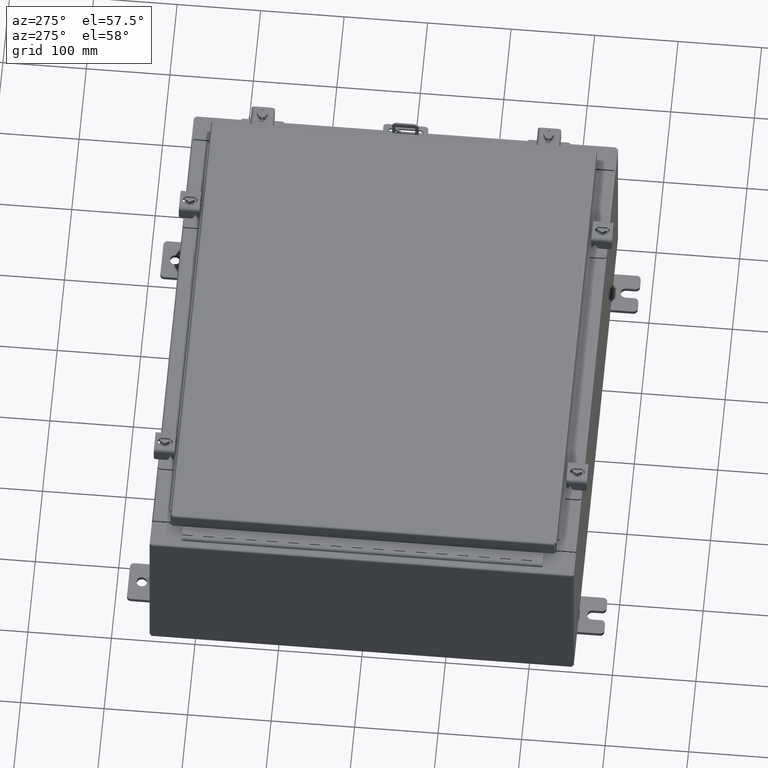
[diagram: clean part render]
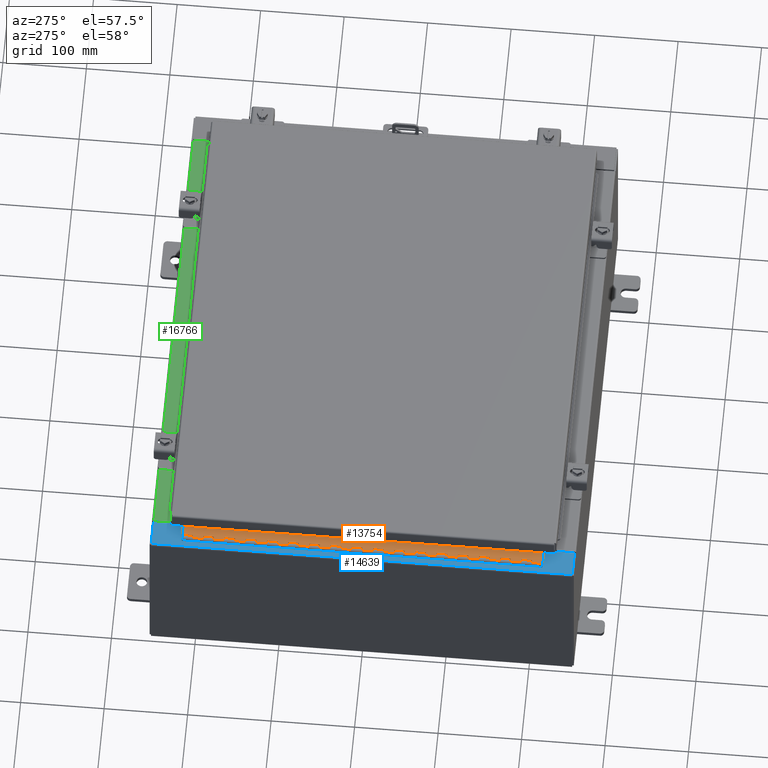
[diagram: same view with three faces highlighted in distinct colors, each labeled with its STEP entity id]
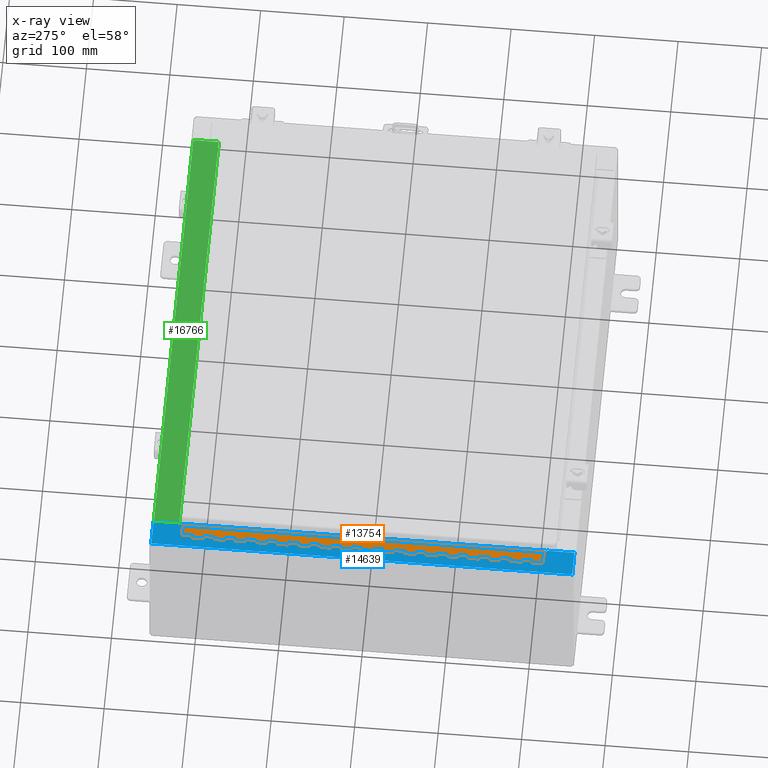
[diagram: x-ray of the same camera — body ghosted, the three highlighted faces saturated]
A machine part, auxiliary view with three faces highlighted in distinct colors.
The next image is the same camera in x-ray (body ghosted, the three faces saturated) — at least one of them is partly hidden behind the body in this view.
Their STEP definitions:

[orange] entity #13754 — the highlighted planar face has unit normal (-0, -0, 1).
#150 = CARTESIAN_POINT ( 'NONE',  ( -0.6869999999999982800, 0.5504999999999997700, -11.50000000000000000 ) ) ;
#158 = DIRECTION ( 'NONE',  ( 0.0000000000000000000, 0.0000000000000000000, 1.000000000000000000 ) ) ;
#272 = VERTEX_POINT ( 'NONE', #16913 ) ;
#316 = VECTOR ( 'NONE', #18030, 39.37007874015748100 ) ;
#347 = VECTOR ( 'NONE', #1883, 39.37007874015748100 ) ;
#364 = CARTESIAN_POINT ( 'NONE',  ( -0.6870000000000022800, -0.6245000000000003900, 0.0000000000000000000 ) ) ;
#389 = CARTESIAN_POINT ( 'NONE',  ( -0.6869999999999982800, 0.5504999999999997700, -2.500000000000000000 ) ) ;
#392 = CARTESIAN_POINT ( 'NONE',  ( -0.6869999999999973900, 0.8004999999999995500, -10.00000000000000000 ) ) ;
#564 = LINE ( 'NONE', #23940, #24026 ) ;
#725 = CARTESIAN_POINT ( 'NONE',  ( -0.6869999999999978300, 0.6754999999999996600, -3.500000000000000000 ) ) ;
#797 = ORIENTED_EDGE ( 'NONE', *, *, #13504, .F. ) ;
#824 = PLANE ( 'NONE',  #3108 ) ;
#835 = EDGE_CURVE ( 'NONE', #9790, #6405, #29325, .T. ) ;
#948 = DIRECTION ( 'NONE',  ( -3.389037039080723100E-015, -1.000000000000000000, 0.0000000000000000000 ) ) ;
#973 = LINE ( 'NONE', #16777, #18375 ) ;
#1019 = CARTESIAN_POINT ( 'NONE',  ( -0.6869999999999998300, 0.07549999999999991400, 0.0000000000000000000 ) ) ;
#1032 = VERTEX_POINT ( 'NONE', #15444 ) ;
#1087 = ORIENTED_EDGE ( 'NONE', *, *, #16019, .T. ) ;
#1096 = ORIENTED_EDGE ( 'NONE', *, *, #2405, .F. ) ;
#1105 = CARTESIAN_POINT ( 'NONE',  ( -0.6869999999999978300, 0.6754999999999996600, -2.999999999999999600 ) ) ;
#1111 = CARTESIAN_POINT ( 'NONE',  ( -0.6869999999999978300, 0.6754999999999996600, -4.000000000000000000 ) ) ;
#1155 = EDGE_CURVE ( 'NONE', #28097, #10122, #16800, .T. ) ;
#1238 = CARTESIAN_POINT ( 'NONE',  ( -0.6869999999999982800, 0.5504999999999997700, -14.00000000000000000 ) ) ;
#1342 = VERTEX_POINT ( 'NONE', #26277 ) ;
#1370 = CARTESIAN_POINT ( 'NONE',  ( -0.6869999999999978300, 0.6754999999999996600, -1.499999999999999800 ) ) ;
#1491 = CARTESIAN_POINT ( 'NONE',  ( -0.6870000000000022800, -0.6245000000000003900, -17.00000000000000000 ) ) ;
#1525 = ORIENTED_EDGE ( 'NONE', *, *, #10647, .T. ) ;
#1534 = LINE ( 'NONE', #25608, #12166 ) ;
#1549 = VECTOR ( 'NONE', #7213, 39.37007874015748100 ) ;
#1603 = EDGE_CURVE ( 'NONE', #5306, #24240, #16061, .T. ) ;
#1675 = VERTEX_POINT ( 'NONE', #26834 ) ;
#1714 = VECTOR ( 'NONE', #3133, 39.37007874015748100 ) ;
#1732 = CARTESIAN_POINT ( 'NONE',  ( -0.6869999999999982800, 0.5504999999999997700, -0.5000000000000000000 ) ) ;
#1752 = VERTEX_POINT ( 'NONE', #27330 ) ;
#1883 = DIRECTION ( 'NONE',  ( 0.0000000000000000000, 0.0000000000000000000, 1.000000000000000000 ) ) ;
#1911 = LINE ( 'NONE', #17728, #18611 ) ;
#1958 = ORIENTED_EDGE ( 'NONE', *, *, #4383, .F. ) ;
#2002 = ORIENTED_EDGE ( 'NONE', *, *, #28410, .F. ) ;
#2143 = CARTESIAN_POINT ( 'NONE',  ( -0.6869999999999978300, 0.6754999999999996600, -17.00000000000000000 ) ) ;
#2217 = CARTESIAN_POINT ( 'NONE',  ( -0.6869999999999973900, 0.8004999999999995500, -13.50000000000000000 ) ) ;
#2219 = CARTESIAN_POINT ( 'NONE',  ( -0.6869999999999982800, 0.5504999999999997700, -3.500000000000000000 ) ) ;
#2387 = ORIENTED_EDGE ( 'NONE', *, *, #9713, .T. ) ;
#2405 = EDGE_CURVE ( 'NONE', #11370, #7037, #27086, .T. ) ;
#2410 = ORIENTED_EDGE ( 'NONE', *, *, #3242, .T. ) ;
#2420 = LINE ( 'NONE', #9177, #19122 ) ;
#2481 = VERTEX_POINT ( 'NONE', #6806 ) ;
#2516 = LINE ( 'NONE', #5661, #3934 ) ;
#2519 = CARTESIAN_POINT ( 'NONE',  ( -0.6869999999999982800, 0.5504999999999997700, -7.499999999999999100 ) ) ;
#2599 = CARTESIAN_POINT ( 'NONE',  ( -0.6869999999999973900, 0.8004999999999995500, -16.50000000000000000 ) ) ;
#2638 = ORIENTED_EDGE ( 'NONE', *, *, #3843, .F. ) ;
#2685 = VECTOR ( 'NONE', #26038, 39.37007874015748100 ) ;
#2780 = DIRECTION ( 'NONE',  ( 0.0000000000000000000, -0.0000000000000000000, -1.000000000000000000 ) ) ;
#2882 = VECTOR ( 'NONE', #10601, 39.37007874015748100 ) ;
#2962 = CARTESIAN_POINT ( 'NONE',  ( -0.6869999999999978300, 0.6754999999999996600, -17.00000000000000000 ) ) ;
#2965 = VERTEX_POINT ( 'NONE', #19088 ) ;
#3000 = VECTOR ( 'NONE', #12143, 39.37007874015748100 ) ;
#3006 = EDGE_CURVE ( 'NONE', #19137, #11370, #18130, .T. ) ;
#3095 = DIRECTION ( 'NONE',  ( 1.000000000000000000, -3.369016658928398200E-015, 0.0000000000000000000 ) ) ;
#3108 = AXIS2_PLACEMENT_3D ( 'NONE', #16695, #3095, #18984 ) ;
#3133 = DIRECTION ( 'NONE',  ( 3.389037039080723100E-015, 1.000000000000000000, -0.0000000000000000000 ) ) ;
#3167 = VERTEX_POINT ( 'NONE', #22068 ) ;
#3175 = LINE ( 'NONE', #16367, #8466 ) ;
#3202 = EDGE_CURVE ( 'NONE', #9790, #12512, #13830, .T. ) ;
#3205 = VECTOR ( 'NONE', #25116, 39.37007874015748100 ) ;
#3242 = EDGE_CURVE ( 'NONE', #13676, #14463, #18479, .T. ) ;
#3245 = ORIENTED_EDGE ( 'NONE', *, *, #24080, .F. ) ;
#3306 = CARTESIAN_POINT ( 'NONE',  ( -0.6869999999999973900, 0.8004999999999995500, -12.49999999999999800 ) ) ;
#3307 = VECTOR ( 'NONE', #7500, 39.37007874015748100 ) ;
#3456 = VERTEX_POINT ( 'NONE', #13958 ) ;
#3474 = CARTESIAN_POINT ( 'NONE',  ( -0.6869999999999978300, 0.6754999999999996600, -17.00000000000000000 ) ) ;
#3484 = DIRECTION ( 'NONE',  ( 0.0000000000000000000, -0.0000000000000000000, -1.000000000000000000 ) ) ;
#3490 = CARTESIAN_POINT ( 'NONE',  ( -0.6869999999999982800, 0.5504999999999997700, -16.00000000000000000 ) ) ;
#3757 = VERTEX_POINT ( 'NONE', #24829 ) ;
#3843 = EDGE_CURVE ( 'NONE', #4757, #7364, #21350, .T. ) ;
#3898 = EDGE_CURVE ( 'NONE', #20452, #25941, #8490, .T. ) ;
#3934 = VECTOR ( 'NONE', #21616, 39.37007874015748100 ) ;
#4123 = LINE ( 'NONE', #392, #16203 ) ;
#4211 = CARTESIAN_POINT ( 'NONE',  ( -0.6869999999999978300, 0.6754999999999996600, -5.000000000000000000 ) ) ;
#4376 = LINE ( 'NONE', #13731, #27169 ) ;
#4380 = EDGE_CURVE ( 'NONE', #8925, #2481, #3175, .T. ) ;
#4383 = EDGE_CURVE ( 'NONE', #10107, #4757, #15956, .T. ) ;
#4453 = LINE ( 'NONE', #3306, #22639 ) ;
#4487 = CARTESIAN_POINT ( 'NONE',  ( -0.6869999999999982800, 0.5504999999999997700, -16.50000000000000000 ) ) ;
#4523 = LINE ( 'NONE', #7179, #15916 ) ;
#4538 = EDGE_CURVE ( 'NONE', #22261, #21526, #21547, .T. ) ;
#4593 = CARTESIAN_POINT ( 'NONE',  ( -0.6869999999999978300, 0.6754999999999996600, -2.500000000000000000 ) ) ;
#4610 = EDGE_CURVE ( 'NONE', #12006, #4928, #564, .T. ) ;
#4641 = VERTEX_POINT ( 'NONE', #1370 ) ;
#4723 = ORIENTED_EDGE ( 'NONE', *, *, #8674, .T. ) ;
#4757 = VERTEX_POINT ( 'NONE', #26622 ) ;
#4898 = VECTOR ( 'NONE', #5704, 39.37007874015748100 ) ;
#4926 = LINE ( 'NONE', #21417, #10240 ) ;
#4928 = VERTEX_POINT ( 'NONE', #22650 ) ;
#4948 = CARTESIAN_POINT ( 'NONE',  ( -0.6869999999999978300, 0.6754999999999996600, -12.49999999999999800 ) ) ;
#5048 = VECTOR ( 'NONE', #5782, 39.37007874015748100 ) ;
#5204 = CARTESIAN_POINT ( 'NONE',  ( -0.6869999999999982800, 0.5504999999999997700, -10.00000000000000000 ) ) ;
#5209 = VECTOR ( 'NONE', #18488, 39.37007874015748100 ) ;
#5260 = DIRECTION ( 'NONE',  ( 0.0000000000000000000, -0.0000000000000000000, -1.000000000000000000 ) ) ;
#5291 = CARTESIAN_POINT ( 'NONE',  ( -0.6869999999999973900, 0.8004999999999995500, -6.000000000000000900 ) ) ;
#5306 = VERTEX_POINT ( 'NONE', #1238 ) ;
#5464 = VECTOR ( 'NONE', #14900, 39.37007874015748100 ) ;
#5477 = DIRECTION ( 'NONE',  ( 3.389037039080723100E-015, 1.000000000000000000, -0.0000000000000000000 ) ) ;
#5503 = VERTEX_POINT ( 'NONE', #8541 ) ;
#5567 = DIRECTION ( 'NONE',  ( 0.0000000000000000000, 0.0000000000000000000, 1.000000000000000000 ) ) ;
#5661 = CARTESIAN_POINT ( 'NONE',  ( -0.6869999999999973900, 0.8004999999999995500, -5.000000000000000000 ) ) ;
#5704 = DIRECTION ( 'NONE',  ( 3.389037039080723100E-015, 1.000000000000000000, -0.0000000000000000000 ) ) ;
#5730 = CARTESIAN_POINT ( 'NONE',  ( -0.6869999999999982800, 0.5504999999999997700, -1.000000000000000000 ) ) ;
#5746 = LINE ( 'NONE', #8086, #5048 ) ;
#5747 = EDGE_CURVE ( 'NONE', #1675, #3456, #7576, .T. ) ;
#5756 = ORIENTED_EDGE ( 'NONE', *, *, #17828, .F. ) ;
#5782 = DIRECTION ( 'NONE',  ( 0.0000000000000000000, -0.0000000000000000000, -1.000000000000000000 ) ) ;
#5901 = LINE ( 'NONE', #2599, #5209 ) ;
#5998 = VECTOR ( 'NONE', #10005, 39.37007874015748100 ) ;
#6105 = CARTESIAN_POINT ( 'NONE',  ( -0.6869999999999982800, 0.5504999999999997700, -10.50000000000000000 ) ) ;
#6171 = CARTESIAN_POINT ( 'NONE',  ( -0.6869999999999973900, 0.8004999999999995500, -5.500000000000000000 ) ) ;
#6174 = CARTESIAN_POINT ( 'NONE',  ( -0.6869999999999978300, 0.6754999999999996600, -9.500000000000000000 ) ) ;
#6405 = VERTEX_POINT ( 'NONE', #23743 ) ;
#6806 = CARTESIAN_POINT ( 'NONE',  ( -0.6869999999999982800, 0.5504999999999997700, -6.000000000000000900 ) ) ;
#6941 = VECTOR ( 'NONE', #20413, 39.37007874015748100 ) ;
#6943 = DIRECTION ( 'NONE',  ( 0.0000000000000000000, -0.0000000000000000000, -1.000000000000000000 ) ) ;
#7006 = LINE ( 'NONE', #16731, #1714 ) ;
#7037 = VERTEX_POINT ( 'NONE', #23870 ) ;
#7061 = ORIENTED_EDGE ( 'NONE', *, *, #28175, .T. ) ;
#7062 = CARTESIAN_POINT ( 'NONE',  ( -0.6869999999999978300, 0.6754999999999996600, -9.000000000000000000 ) ) ;
#7063 = VECTOR ( 'NONE', #26751, 39.37007874015748100 ) ;
#7082 = DIRECTION ( 'NONE',  ( 3.369016658928398200E-015, 1.000000000000000000, 0.0000000000000000000 ) ) ;
#7149 = VECTOR ( 'NONE', #24758, 39.37007874015748100 ) ;
#7164 = VERTEX_POINT ( 'NONE', #12879 ) ;
#7179 = CARTESIAN_POINT ( 'NONE',  ( -0.6869999999999973900, 0.8004999999999995500, -8.000000000000000000 ) ) ;
#7184 = CARTESIAN_POINT ( 'NONE',  ( -0.6869999999999973900, 0.8004999999999995500, -16.00000000000000000 ) ) ;
#7213 = DIRECTION ( 'NONE',  ( -3.389037039080723100E-015, -1.000000000000000000, 0.0000000000000000000 ) ) ;
#7232 = EDGE_CURVE ( 'NONE', #4641, #22664, #14965, .T. ) ;
#7258 = LINE ( 'NONE', #8836, #18668 ) ;
#7306 = DIRECTION ( 'NONE',  ( -3.389037039080723100E-015, -1.000000000000000000, 0.0000000000000000000 ) ) ;
#7358 = DIRECTION ( 'NONE',  ( -3.389037039080723100E-015, -1.000000000000000000, 0.0000000000000000000 ) ) ;
#7364 = VERTEX_POINT ( 'NONE', #8586 ) ;
#7370 = CARTESIAN_POINT ( 'NONE',  ( -0.6869999999999978300, 0.6754999999999996600, -17.00000000000000000 ) ) ;
#7453 = LINE ( 'NONE', #9049, #19567 ) ;
#7464 = LINE ( 'NONE', #6171, #24918 ) ;
#7500 = DIRECTION ( 'NONE',  ( 3.389037039080723100E-015, 1.000000000000000000, -0.0000000000000000000 ) ) ;
#7506 = DIRECTION ( 'NONE',  ( 0.0000000000000000000, 0.0000000000000000000, 1.000000000000000000 ) ) ;
#7511 = VECTOR ( 'NONE', #16185, 39.37007874015748100 ) ;
#7513 = VECTOR ( 'NONE', #21511, 39.37007874015748100 ) ;
#7576 = LINE ( 'NONE', #20872, #1549 ) ;
#7593 = EDGE_CURVE ( 'NONE', #11973, #7164, #11725, .T. ) ;
#7774 = VECTOR ( 'NONE', #9504, 39.37007874015748100 ) ;
#7798 = EDGE_CURVE ( 'NONE', #21134, #8925, #7464, .T. ) ;
#7832 = ORIENTED_EDGE ( 'NONE', *, *, #4610, .F. ) ;
#7837 = VECTOR ( 'NONE', #7506, 39.37007874015748100 ) ;
#7864 = DIRECTION ( 'NONE',  ( 0.0000000000000000000, -0.0000000000000000000, -1.000000000000000000 ) ) ;
#8008 = VERTEX_POINT ( 'NONE', #18420 ) ;
#8030 = CARTESIAN_POINT ( 'NONE',  ( -0.6869999999999978300, 0.6754999999999996600, -17.00000000000000000 ) ) ;
#8032 = VERTEX_POINT ( 'NONE', #7062 ) ;
#8036 = LINE ( 'NONE', #10196, #19456 ) ;
#8086 = CARTESIAN_POINT ( 'NONE',  ( -0.6869999999999982800, 0.5504999999999997700, -13.50000000000000000 ) ) ;
#8188 = VECTOR ( 'NONE', #13185, 39.37007874015748100 ) ;
#8288 = ORIENTED_EDGE ( 'NONE', *, *, #10729, .T. ) ;
#8466 = VECTOR ( 'NONE', #2780, 39.37007874015748100 ) ;
#8490 = LINE ( 'NONE', #364, #13835 ) ;
#8541 = CARTESIAN_POINT ( 'NONE',  ( -0.6869999999999982800, 0.5504999999999997700, -0.5000000000000000000 ) ) ;
#8586 = CARTESIAN_POINT ( 'NONE',  ( -0.6869999999999982800, 0.5504999999999997700, -14.99999999999999800 ) ) ;
#8621 = VECTOR ( 'NONE', #28996, 39.37007874015748100 ) ;
#8674 = EDGE_CURVE ( 'NONE', #19137, #18096, #14875, .T. ) ;
#8717 = ORIENTED_EDGE ( 'NONE', *, *, #26592, .F. ) ;
#8720 = CARTESIAN_POINT ( 'NONE',  ( -0.6869999999999973900, 0.8004999999999995500, -14.99999999999999800 ) ) ;
#8742 = ORIENTED_EDGE ( 'NONE', *, *, #29298, .F. ) ;
#8836 = CARTESIAN_POINT ( 'NONE',  ( -0.6869999999999982800, 0.5504999999999997700, -3.500000000000000000 ) ) ;
#8842 = VERTEX_POINT ( 'NONE', #23262 ) ;
#8916 = CARTESIAN_POINT ( 'NONE',  ( -0.6869999999999978300, 0.6754999999999996600, 0.0000000000000000000 ) ) ;
#8925 = VERTEX_POINT ( 'NONE', #18876 ) ;
#8995 = ORIENTED_EDGE ( 'NONE', *, *, #16884, .F. ) ;
#8998 = LINE ( 'NONE', #5291, #3000 ) ;
#9049 = CARTESIAN_POINT ( 'NONE',  ( -0.6869999999999973900, 0.8004999999999995500, -15.50000000000000000 ) ) ;
#9055 = EDGE_CURVE ( 'NONE', #22309, #9474, #10924, .T. ) ;
#9122 = ORIENTED_EDGE ( 'NONE', *, *, #7593, .T. ) ;
#9145 = VECTOR ( 'NONE', #7864, 39.37007874015748100 ) ;
#9177 = CARTESIAN_POINT ( 'NONE',  ( -0.6869999999999978300, 0.6754999999999996600, -17.00000000000000000 ) ) ;
#9194 = CARTESIAN_POINT ( 'NONE',  ( -0.6869999999999978300, 0.6754999999999996600, -17.00000000000000000 ) ) ;
#9218 = LINE ( 'NONE', #16314, #14565 ) ;
#9294 = LINE ( 'NONE', #26656, #21427 ) ;
#9323 = CARTESIAN_POINT ( 'NONE',  ( -0.6869999999999978300, 0.6754999999999996600, -17.00000000000000000 ) ) ;
#9474 = VERTEX_POINT ( 'NONE', #9680 ) ;
#9504 = DIRECTION ( 'NONE',  ( -3.389037039080723100E-015, -1.000000000000000000, 0.0000000000000000000 ) ) ;
#9540 = CARTESIAN_POINT ( 'NONE',  ( -0.6869999999999982800, 0.5504999999999997700, -12.99999999999999800 ) ) ;
#9680 = CARTESIAN_POINT ( 'NONE',  ( -0.6869999999999978300, 0.6754999999999996600, -1.000000000000000000 ) ) ;
#9693 = ORIENTED_EDGE ( 'NONE', *, *, #13136, .F. ) ;
#9705 = ORIENTED_EDGE ( 'NONE', *, *, #4538, .F. ) ;
#9713 = EDGE_CURVE ( 'NONE', #27478, #27604, #23801, .T. ) ;
#9719 = LINE ( 'NONE', #14554, #15064 ) ;
#9790 = VERTEX_POINT ( 'NONE', #4593 ) ;
#9815 = CARTESIAN_POINT ( 'NONE',  ( -0.6869999999999978300, 0.6754999999999996600, -6.499999999999999100 ) ) ;
#9830 = CARTESIAN_POINT ( 'NONE',  ( -0.6869999999999973900, 0.8004999999999995500, -9.500000000000000000 ) ) ;
#9858 = LINE ( 'NONE', #17016, #9145 ) ;
#9890 = ORIENTED_EDGE ( 'NONE', *, *, #29333, .F. ) ;
#9993 = VECTOR ( 'NONE', #25238, 39.37007874015748100 ) ;
#10005 = DIRECTION ( 'NONE',  ( -3.389037039080723100E-015, -1.000000000000000000, 0.0000000000000000000 ) ) ;
#10089 = EDGE_CURVE ( 'NONE', #3456, #1032, #9858, .T. ) ;
#10107 = VERTEX_POINT ( 'NONE', #19416 ) ;
#10115 = ORIENTED_EDGE ( 'NONE', *, *, #15868, .F. ) ;
#10122 = VERTEX_POINT ( 'NONE', #28495 ) ;
#10196 = CARTESIAN_POINT ( 'NONE',  ( -0.6869999999999982800, 0.5504999999999997700, -15.50000000000000000 ) ) ;
#10240 = VECTOR ( 'NONE', #14633, 39.37007874015748100 ) ;
#10296 = ORIENTED_EDGE ( 'NONE', *, *, #23259, .F. ) ;
#10465 = EDGE_CURVE ( 'NONE', #12709, #1342, #5901, .T. ) ;
#10511 = VERTEX_POINT ( 'NONE', #4948 ) ;
#10585 = ORIENTED_EDGE ( 'NONE', *, *, #22655, .F. ) ;
#10601 = DIRECTION ( 'NONE',  ( 0.0000000000000000000, -0.0000000000000000000, -1.000000000000000000 ) ) ;
#10620 = DIRECTION ( 'NONE',  ( 0.0000000000000000000, -0.0000000000000000000, -1.000000000000000000 ) ) ;
#10629 = VECTOR ( 'NONE', #14429, 39.37007874015748100 ) ;
#10647 = EDGE_CURVE ( 'NONE', #12709, #10122, #973, .T. ) ;
#10729 = EDGE_CURVE ( 'NONE', #4641, #9474, #21590, .T. ) ;
#10730 = DIRECTION ( 'NONE',  ( 0.0000000000000000000, 0.0000000000000000000, 1.000000000000000000 ) ) ;
#10746 = ORIENTED_EDGE ( 'NONE', *, *, #14234, .F. ) ;
#10854 = ORIENTED_EDGE ( 'NONE', *, *, #835, .T. ) ;
#10857 = ORIENTED_EDGE ( 'NONE', *, *, #9055, .F. ) ;
#10924 = LINE ( 'NONE', #28453, #4898 ) ;
#10940 = ORIENTED_EDGE ( 'NONE', *, *, #21993, .F. ) ;
#11004 = DIRECTION ( 'NONE',  ( 0.0000000000000000000, -0.0000000000000000000, -1.000000000000000000 ) ) ;
#11064 = EDGE_CURVE ( 'NONE', #10107, #24240, #19062, .T. ) ;
#11110 = DIRECTION ( 'NONE',  ( 3.389037039080723100E-015, 1.000000000000000000, -0.0000000000000000000 ) ) ;
#11173 = ORIENTED_EDGE ( 'NONE', *, *, #18264, .T. ) ;
#11359 = EDGE_CURVE ( 'NONE', #22261, #18603, #12402, .T. ) ;
#11370 = VERTEX_POINT ( 'NONE', #11940 ) ;
#11382 = VERTEX_POINT ( 'NONE', #14237 ) ;
#11470 = EDGE_CURVE ( 'NONE', #10511, #15101, #4926, .T. ) ;
#11482 = CARTESIAN_POINT ( 'NONE',  ( -0.6869999999999982800, 0.5504999999999997700, -8.500000000000000000 ) ) ;
#11511 = EDGE_CURVE ( 'NONE', #17262, #20452, #27012, .T. ) ;
#11562 = LINE ( 'NONE', #4487, #6941 ) ;
#11603 = CARTESIAN_POINT ( 'NONE',  ( -0.6869999999999982800, 0.5504999999999997700, -11.99999999999999800 ) ) ;
#11649 = ORIENTED_EDGE ( 'NONE', *, *, #25895, .F. ) ;
#11725 = LINE ( 'NONE', #2962, #7837 ) ;
#11767 = VECTOR ( 'NONE', #15503, 39.37007874015748100 ) ;
#11782 = CARTESIAN_POINT ( 'NONE',  ( -0.6869999999999973900, 0.8004999999999995500, -14.49999999999999800 ) ) ;
#11849 = EDGE_CURVE ( 'NONE', #8008, #24859, #20584, .T. ) ;
#11907 = CARTESIAN_POINT ( 'NONE',  ( -0.6869999999999978300, 0.6754999999999996600, -15.50000000000000000 ) ) ;
#11940 = CARTESIAN_POINT ( 'NONE',  ( -0.6869999999999982800, 0.5504999999999997700, -8.500000000000000000 ) ) ;
#11942 = VERTEX_POINT ( 'NONE', #11603 ) ;
#11957 = VERTEX_POINT ( 'NONE', #725 ) ;
#11963 = ORIENTED_EDGE ( 'NONE', *, *, #22702, .F. ) ;
#11973 = VERTEX_POINT ( 'NONE', #9815 ) ;
#12006 = VERTEX_POINT ( 'NONE', #21387 ) ;
#12007 = ORIENTED_EDGE ( 'NONE', *, *, #16767, .F. ) ;
#12074 = VERTEX_POINT ( 'NONE', #1105 ) ;
#12143 = DIRECTION ( 'NONE',  ( 3.389037039080723100E-015, 1.000000000000000000, -0.0000000000000000000 ) ) ;
#12159 = ORIENTED_EDGE ( 'NONE', *, *, #17971, .T. ) ;
#12166 = VECTOR ( 'NONE', #7358, 39.37007874015748100 ) ;
#12356 = ORIENTED_EDGE ( 'NONE', *, *, #11511, .F. ) ;
#12402 = LINE ( 'NONE', #7370, #18467 ) ;
#12512 = VERTEX_POINT ( 'NONE', #389 ) ;
#12598 = LINE ( 'NONE', #27477, #17228 ) ;
#12709 = VERTEX_POINT ( 'NONE', #26110 ) ;
#12724 = CARTESIAN_POINT ( 'NONE',  ( -0.6869999999999982800, 0.5504999999999997700, -4.000000000000000000 ) ) ;
#12760 = EDGE_CURVE ( 'NONE', #26914, #18603, #23080, .T. ) ;
#12856 = ORIENTED_EDGE ( 'NONE', *, *, #10089, .F. ) ;
#12879 = CARTESIAN_POINT ( 'NONE',  ( -0.6869999999999978300, 0.6754999999999996600, -6.000000000000000900 ) ) ;
#12949 = ORIENTED_EDGE ( 'NONE', *, *, #23949, .F. ) ;
#12991 = DIRECTION ( 'NONE',  ( 3.389037039080723100E-015, 1.000000000000000000, -0.0000000000000000000 ) ) ;
#13040 = DIRECTION ( 'NONE',  ( -3.389037039080723100E-015, -1.000000000000000000, 0.0000000000000000000 ) ) ;
#13058 = ORIENTED_EDGE ( 'NONE', *, *, #13353, .F. ) ;
#13136 = EDGE_CURVE ( 'NONE', #11382, #12074, #7006, .T. ) ;
#13185 = DIRECTION ( 'NONE',  ( -3.389037039080723100E-015, -1.000000000000000000, 0.0000000000000000000 ) ) ;
#13240 = DIRECTION ( 'NONE',  ( 0.0000000000000000000, -0.0000000000000000000, -1.000000000000000000 ) ) ;
#13353 = EDGE_CURVE ( 'NONE', #5503, #22309, #26965, .T. ) ;
#13383 = CARTESIAN_POINT ( 'NONE',  ( -0.6869999999999973900, 0.8004999999999995500, -12.99999999999999800 ) ) ;
#13399 = VECTOR ( 'NONE', #15322, 39.37007874015748100 ) ;
#13504 = EDGE_CURVE ( 'NONE', #27478, #3757, #22698, .T. ) ;
#13657 = EDGE_LOOP ( 'NONE', ( #12356, #7061, #10746, #18737, #1525, #19766, #24901, #22396, #2410, #3245, #2638, #1958, #16888, #24833, #14181, #797, #2387, #8995, #2002, #14559, #16956, #19862, #10296, #9705, #29006, #17959, #13760, #9890, #23499, #8717, #22196, #20476, #20965, #11963, #1096, #17421, #4723, #21058, #12949, #8742, #28439, #7832, #21211, #17170, #9122, #10585, #25150, #24222, #1087, #5756, #12856, #13993, #28017, #12007, #10940, #10115, #12159, #9693, #11649, #14070, #10854, #19560, #18941, #25342, #8288, #10857, #13058, #14810, #11173, #24642 ) ) ;
#13676 = VERTEX_POINT ( 'NONE', #11907 ) ;
#13713 = VECTOR ( 'NONE', #25130, 39.37007874015748100 ) ;
#13724 = CARTESIAN_POINT ( 'NONE',  ( -0.6869999999999978300, 0.6754999999999996600, -8.000000000000000000 ) ) ;
#13731 = CARTESIAN_POINT ( 'NONE',  ( -0.6869999999999978300, 0.6754999999999996600, -17.00000000000000000 ) ) ;
#13754 = ADVANCED_FACE ( 'NONE', ( #16943 ), #824, .T. ) ;
#13760 = ORIENTED_EDGE ( 'NONE', *, *, #21389, .F. ) ;
#13830 = LINE ( 'NONE', #22174, #7063 ) ;
#13835 = VECTOR ( 'NONE', #7082, 39.37007874015748100 ) ;
#13873 = EDGE_CURVE ( 'NONE', #272, #28097, #8036, .T. ) ;
#13958 = CARTESIAN_POINT ( 'NONE',  ( -0.6869999999999982800, 0.5504999999999997700, -4.500000000000000000 ) ) ;
#13966 = VECTOR ( 'NONE', #17379, 39.37007874015748100 ) ;
#13993 = ORIENTED_EDGE ( 'NONE', *, *, #5747, .F. ) ;
#14070 = ORIENTED_EDGE ( 'NONE', *, *, #3202, .F. ) ;
#14181 = ORIENTED_EDGE ( 'NONE', *, *, #28766, .F. ) ;
#14234 = EDGE_CURVE ( 'NONE', #1342, #19366, #11562, .T. ) ;
#14237 = CARTESIAN_POINT ( 'NONE',  ( -0.6869999999999982800, 0.5504999999999997700, -2.999999999999999600 ) ) ;
#14271 = LINE ( 'NONE', #9323, #7511 ) ;
#14272 = VECTOR ( 'NONE', #7306, 39.37007874015748100 ) ;
#14330 = VECTOR ( 'NONE', #27348, 39.37007874015748100 ) ;
#14429 = DIRECTION ( 'NONE',  ( 0.0000000000000000000, 0.0000000000000000000, 1.000000000000000000 ) ) ;
#14463 = VERTEX_POINT ( 'NONE', #21108 ) ;
#14549 = CARTESIAN_POINT ( 'NONE',  ( -0.6869999999999973900, 0.8004999999999995500, -7.499999999999999100 ) ) ;
#14553 = EDGE_CURVE ( 'NONE', #10511, #28297, #4453, .T. ) ;
#14554 = CARTESIAN_POINT ( 'NONE',  ( -0.6869999999999973900, 0.8004999999999995500, -9.000000000000000000 ) ) ;
#14559 = ORIENTED_EDGE ( 'NONE', *, *, #14553, .F. ) ;
#14565 = VECTOR ( 'NONE', #25494, 39.37007874015748100 ) ;
#14633 = DIRECTION ( 'NONE',  ( 0.0000000000000000000, 0.0000000000000000000, 1.000000000000000000 ) ) ;
#14641 = LINE ( 'NONE', #28795, #19998 ) ;
#14694 = LINE ( 'NONE', #1491, #13966 ) ;
#14810 = ORIENTED_EDGE ( 'NONE', *, *, #16140, .F. ) ;
#14864 = DIRECTION ( 'NONE',  ( 3.389037039080723100E-015, 1.000000000000000000, -0.0000000000000000000 ) ) ;
#14875 = LINE ( 'NONE', #15790, #20244 ) ;
#14880 = VECTOR ( 'NONE', #5567, 39.37007874015748100 ) ;
#14900 = DIRECTION ( 'NONE',  ( 0.0000000000000000000, 0.0000000000000000000, 1.000000000000000000 ) ) ;
#14965 = LINE ( 'NONE', #29157, #8188 ) ;
#15064 = VECTOR ( 'NONE', #5477, 39.37007874015748100 ) ;
#15092 = VECTOR ( 'NONE', #25789, 39.37007874015748100 ) ;
#15101 = VERTEX_POINT ( 'NONE', #17261 ) ;
#15322 = DIRECTION ( 'NONE',  ( 0.0000000000000000000, -0.0000000000000000000, -1.000000000000000000 ) ) ;
#15332 = CARTESIAN_POINT ( 'NONE',  ( -0.6869999999999982800, 0.5504999999999997700, -2.000000000000000000 ) ) ;
#15355 = DIRECTION ( 'NONE',  ( 3.389037039080723100E-015, 1.000000000000000000, -0.0000000000000000000 ) ) ;
#15444 = CARTESIAN_POINT ( 'NONE',  ( -0.6869999999999982800, 0.5504999999999997700, -5.000000000000000000 ) ) ;
#15462 = VECTOR ( 'NONE', #10730, 39.37007874015748100 ) ;
#15503 = DIRECTION ( 'NONE',  ( 3.389037039080723100E-015, 1.000000000000000000, -0.0000000000000000000 ) ) ;
#15579 = CARTESIAN_POINT ( 'NONE',  ( -0.6869999999999982800, 0.5504999999999997700, -12.49999999999999800 ) ) ;
#15790 = CARTESIAN_POINT ( 'NONE',  ( -0.6869999999999978300, 0.6754999999999996600, -17.00000000000000000 ) ) ;
#15868 = EDGE_CURVE ( 'NONE', #11957, #20150, #1911, .T. ) ;
#15916 = VECTOR ( 'NONE', #20736, 39.37007874015748100 ) ;
#15956 = LINE ( 'NONE', #11782, #7774 ) ;
#15983 = LINE ( 'NONE', #25793, #10629 ) ;
#16019 = EDGE_CURVE ( 'NONE', #21134, #25186, #4376, .T. ) ;
#16061 = LINE ( 'NONE', #26740, #9993 ) ;
#16140 = EDGE_CURVE ( 'NONE', #8842, #5503, #1534, .T. ) ;
#16168 = LINE ( 'NONE', #24395, #15462 ) ;
#16185 = DIRECTION ( 'NONE',  ( 0.0000000000000000000, 0.0000000000000000000, 1.000000000000000000 ) ) ;
#16203 = VECTOR ( 'NONE', #16260, 39.37007874015748100 ) ;
#16221 = VECTOR ( 'NONE', #19374, 39.37007874015748100 ) ;
#16260 = DIRECTION ( 'NONE',  ( 3.389037039080723100E-015, 1.000000000000000000, -0.0000000000000000000 ) ) ;
#16287 = VECTOR ( 'NONE', #15355, 39.37007874015748100 ) ;
#16314 = CARTESIAN_POINT ( 'NONE',  ( -0.6869999999999973900, 0.8004999999999995500, -2.000000000000000000 ) ) ;
#16367 = CARTESIAN_POINT ( 'NONE',  ( -0.6869999999999982800, 0.5504999999999997700, -5.500000000000000000 ) ) ;
#16617 = VECTOR ( 'NONE', #11004, 39.37007874015748100 ) ;
#16695 = CARTESIAN_POINT ( 'NONE',  ( -0.6870000000000022800, -0.6245000000000003900, -17.00000000000000000 ) ) ;
#16731 = CARTESIAN_POINT ( 'NONE',  ( -0.6869999999999973900, 0.8004999999999995500, -2.999999999999999600 ) ) ;
#16767 = EDGE_CURVE ( 'NONE', #23918, #20487, #9294, .T. ) ;
#16777 = CARTESIAN_POINT ( 'NONE',  ( -0.6869999999999978300, 0.6754999999999996600, -17.00000000000000000 ) ) ;
#16800 = LINE ( 'NONE', #7184, #3307 ) ;
#16884 = EDGE_CURVE ( 'NONE', #23183, #27604, #24618, .T. ) ;
#16888 = ORIENTED_EDGE ( 'NONE', *, *, #11064, .T. ) ;
#16913 = CARTESIAN_POINT ( 'NONE',  ( -0.6869999999999982800, 0.5504999999999997700, -15.50000000000000000 ) ) ;
#16943 = FACE_OUTER_BOUND ( 'NONE', #13657, .T. ) ;
#16946 = CARTESIAN_POINT ( 'NONE',  ( -0.6869999999999978300, 0.6754999999999996600, -5.500000000000000000 ) ) ;
#16956 = ORIENTED_EDGE ( 'NONE', *, *, #11470, .T. ) ;
#17016 = CARTESIAN_POINT ( 'NONE',  ( -0.6869999999999982800, 0.5504999999999997700, -4.500000000000000000 ) ) ;
#17021 = CARTESIAN_POINT ( 'NONE',  ( -0.6869999999999998300, 0.07549999999999991400, -17.00000000000000000 ) ) ;
#17097 = EDGE_CURVE ( 'NONE', #11973, #28020, #21062, .T. ) ;
#17170 = ORIENTED_EDGE ( 'NONE', *, *, #17097, .F. ) ;
#17228 = VECTOR ( 'NONE', #6943, 39.37007874015748100 ) ;
#17261 = CARTESIAN_POINT ( 'NONE',  ( -0.6869999999999978300, 0.6754999999999996600, -11.99999999999999800 ) ) ;
#17262 = VERTEX_POINT ( 'NONE', #26223 ) ;
#17337 = CARTESIAN_POINT ( 'NONE',  ( -0.6869999999999982800, 0.5504999999999997700, -11.00000000000000000 ) ) ;
#17379 = DIRECTION ( 'NONE',  ( 3.369016658928398200E-015, 1.000000000000000000, 0.0000000000000000000 ) ) ;
#17401 = CARTESIAN_POINT ( 'NONE',  ( -0.6869999999999978300, 0.6754999999999996600, -12.99999999999999800 ) ) ;
#17421 = ORIENTED_EDGE ( 'NONE', *, *, #3006, .F. ) ;
#17728 = CARTESIAN_POINT ( 'NONE',  ( -0.6869999999999973900, 0.8004999999999995500, -3.500000000000000000 ) ) ;
#17828 = EDGE_CURVE ( 'NONE', #1032, #25186, #2516, .T. ) ;
#17831 = LINE ( 'NONE', #24581, #11767 ) ;
#17904 = DIRECTION ( 'NONE',  ( -3.389037039080723100E-015, -1.000000000000000000, 0.0000000000000000000 ) ) ;
#17959 = ORIENTED_EDGE ( 'NONE', *, *, #12760, .F. ) ;
#17971 = EDGE_CURVE ( 'NONE', #11957, #12074, #23862, .T. ) ;
#18030 = DIRECTION ( 'NONE',  ( 0.0000000000000000000, 0.0000000000000000000, 1.000000000000000000 ) ) ;
#18096 = VERTEX_POINT ( 'NONE', #13724 ) ;
#18130 = LINE ( 'NONE', #21479, #5998 ) ;
#18264 = EDGE_CURVE ( 'NONE', #8842, #25941, #15983, .T. ) ;
#18375 = VECTOR ( 'NONE', #19075, 39.37007874015748100 ) ;
#18376 = VERTEX_POINT ( 'NONE', #21596 ) ;
#18420 = CARTESIAN_POINT ( 'NONE',  ( -0.6869999999999982800, 0.5504999999999997700, -9.500000000000000000 ) ) ;
#18467 = VECTOR ( 'NONE', #20924, 39.37007874015748100 ) ;
#18479 = LINE ( 'NONE', #29165, #347 ) ;
#18488 = DIRECTION ( 'NONE',  ( -3.389037039080723100E-015, -1.000000000000000000, 0.0000000000000000000 ) ) ;
#18590 = CARTESIAN_POINT ( 'NONE',  ( -0.6869999999999978300, 0.6754999999999996600, -14.00000000000000000 ) ) ;
#18603 = VERTEX_POINT ( 'NONE', #26956 ) ;
#18611 = VECTOR ( 'NONE', #26899, 39.37007874015748100 ) ;
#18668 = VECTOR ( 'NONE', #29397, 39.37007874015748100 ) ;
#18737 = ORIENTED_EDGE ( 'NONE', *, *, #10465, .F. ) ;
#18876 = CARTESIAN_POINT ( 'NONE',  ( -0.6869999999999982800, 0.5504999999999997700, -5.500000000000000000 ) ) ;
#18941 = ORIENTED_EDGE ( 'NONE', *, *, #22889, .F. ) ;
#18984 = DIRECTION ( 'NONE',  ( 3.369016658928398200E-015, 1.000000000000000000, 0.0000000000000000000 ) ) ;
#19023 = CARTESIAN_POINT ( 'NONE',  ( -0.6869999999999982800, 0.5504999999999997700, -1.499999999999999800 ) ) ;
#19062 = LINE ( 'NONE', #9194, #13713 ) ;
#19075 = DIRECTION ( 'NONE',  ( 0.0000000000000000000, 0.0000000000000000000, 1.000000000000000000 ) ) ;
#19088 = CARTESIAN_POINT ( 'NONE',  ( -0.6869999999999978300, 0.6754999999999996600, -10.50000000000000000 ) ) ;
#19122 = VECTOR ( 'NONE', #158, 39.37007874015748100 ) ;
#19137 = VERTEX_POINT ( 'NONE', #19859 ) ;
#19155 = VECTOR ( 'NONE', #20494, 39.37007874015748100 ) ;
#19193 = CARTESIAN_POINT ( 'NONE',  ( -0.6869999999999982800, 0.5504999999999997700, -6.499999999999999100 ) ) ;
#19203 = DIRECTION ( 'NONE',  ( -3.389037039080723100E-015, -1.000000000000000000, 0.0000000000000000000 ) ) ;
#19366 = VERTEX_POINT ( 'NONE', #20446 ) ;
#19374 = DIRECTION ( 'NONE',  ( 0.0000000000000000000, 0.0000000000000000000, 1.000000000000000000 ) ) ;
#19416 = CARTESIAN_POINT ( 'NONE',  ( -0.6869999999999978300, 0.6754999999999996600, -14.49999999999999800 ) ) ;
#19420 = EDGE_CURVE ( 'NONE', #18376, #18096, #4523, .T. ) ;
#19456 = VECTOR ( 'NONE', #3484, 39.37007874015748100 ) ;
#19552 = EDGE_CURVE ( 'NONE', #2965, #3167, #2420, .T. ) ;
#19560 = ORIENTED_EDGE ( 'NONE', *, *, #25440, .F. ) ;
#19567 = VECTOR ( 'NONE', #22728, 39.37007874015748100 ) ;
#19766 = ORIENTED_EDGE ( 'NONE', *, *, #1155, .F. ) ;
#19859 = CARTESIAN_POINT ( 'NONE',  ( -0.6869999999999978300, 0.6754999999999996600, -8.500000000000000000 ) ) ;
#19862 = ORIENTED_EDGE ( 'NONE', *, *, #24035, .F. ) ;
#19950 = CARTESIAN_POINT ( 'NONE',  ( -0.6869999999999973900, 0.8004999999999995500, -11.00000000000000000 ) ) ;
#19998 = VECTOR ( 'NONE', #10620, 39.37007874015748100 ) ;
#20150 = VERTEX_POINT ( 'NONE', #2219 ) ;
#20244 = VECTOR ( 'NONE', #22494, 39.37007874015748100 ) ;
#20413 = DIRECTION ( 'NONE',  ( 0.0000000000000000000, -0.0000000000000000000, -1.000000000000000000 ) ) ;
#20446 = CARTESIAN_POINT ( 'NONE',  ( -0.6869999999999982800, 0.5504999999999997700, -17.00000000000000000 ) ) ;
#20452 = VERTEX_POINT ( 'NONE', #1019 ) ;
#20467 = CARTESIAN_POINT ( 'NONE',  ( -0.6869999999999982800, 0.5504999999999997700, -12.49999999999999800 ) ) ;
#20476 = ORIENTED_EDGE ( 'NONE', *, *, #22152, .F. ) ;
#20487 = VERTEX_POINT ( 'NONE', #1111 ) ;
#20494 = DIRECTION ( 'NONE',  ( 0.0000000000000000000, -0.0000000000000000000, -1.000000000000000000 ) ) ;
#20584 = LINE ( 'NONE', #25071, #19155 ) ;
#20736 = DIRECTION ( 'NONE',  ( 3.389037039080723100E-015, 1.000000000000000000, -0.0000000000000000000 ) ) ;
#20872 = CARTESIAN_POINT ( 'NONE',  ( -0.6869999999999973900, 0.8004999999999995500, -4.500000000000000000 ) ) ;
#20924 = DIRECTION ( 'NONE',  ( 0.0000000000000000000, 0.0000000000000000000, 1.000000000000000000 ) ) ;
#20965 = ORIENTED_EDGE ( 'NONE', *, *, #21868, .T. ) ;
#21058 = ORIENTED_EDGE ( 'NONE', *, *, #19420, .F. ) ;
#21062 = LINE ( 'NONE', #23257, #14272 ) ;
#21108 = CARTESIAN_POINT ( 'NONE',  ( -0.6869999999999978300, 0.6754999999999996600, -14.99999999999999800 ) ) ;
#21134 = VERTEX_POINT ( 'NONE', #16946 ) ;
#21160 = VECTOR ( 'NONE', #13240, 39.37007874015748100 ) ;
#21211 = ORIENTED_EDGE ( 'NONE', *, *, #22076, .F. ) ;
#21350 = LINE ( 'NONE', #22932, #3205 ) ;
#21387 = CARTESIAN_POINT ( 'NONE',  ( -0.6869999999999982800, 0.5504999999999997700, -7.000000000000000000 ) ) ;
#21389 = EDGE_CURVE ( 'NONE', #24484, #26914, #21865, .T. ) ;
#21417 = CARTESIAN_POINT ( 'NONE',  ( -0.6869999999999978300, 0.6754999999999996600, -17.00000000000000000 ) ) ;
#21427 = VECTOR ( 'NONE', #12991, 39.37007874015748100 ) ;
#21479 = CARTESIAN_POINT ( 'NONE',  ( -0.6869999999999973900, 0.8004999999999995500, -8.500000000000000000 ) ) ;
#21511 = DIRECTION ( 'NONE',  ( -3.389037039080723100E-015, -1.000000000000000000, 0.0000000000000000000 ) ) ;
#21526 = VERTEX_POINT ( 'NONE', #150 ) ;
#21547 = LINE ( 'NONE', #23759, #2685 ) ;
#21590 = LINE ( 'NONE', #3474, #16221 ) ;
#21596 = CARTESIAN_POINT ( 'NONE',  ( -0.6869999999999982800, 0.5504999999999997700, -8.000000000000000000 ) ) ;
#21616 = DIRECTION ( 'NONE',  ( 3.389037039080723100E-015, 1.000000000000000000, -0.0000000000000000000 ) ) ;
#21865 = LINE ( 'NONE', #29225, #21160 ) ;
#21868 = EDGE_CURVE ( 'NONE', #26989, #8032, #16168, .T. ) ;
#21878 = VERTEX_POINT ( 'NONE', #15332 ) ;
#21993 = EDGE_CURVE ( 'NONE', #20150, #23918, #7258, .T. ) ;
#22068 = CARTESIAN_POINT ( 'NONE',  ( -0.6869999999999978300, 0.6754999999999996600, -10.00000000000000000 ) ) ;
#22076 = EDGE_CURVE ( 'NONE', #28020, #12006, #12598, .T. ) ;
#22086 = VERTEX_POINT ( 'NONE', #2519 ) ;
#22107 = DIRECTION ( 'NONE',  ( 0.0000000000000000000, 0.0000000000000000000, 1.000000000000000000 ) ) ;
#22152 = EDGE_CURVE ( 'NONE', #26989, #8008, #27223, .T. ) ;
#22174 = CARTESIAN_POINT ( 'NONE',  ( -0.6869999999999973900, 0.8004999999999995500, -2.500000000000000000 ) ) ;
#22196 = ORIENTED_EDGE ( 'NONE', *, *, #11849, .F. ) ;
#22261 = VERTEX_POINT ( 'NONE', #26069 ) ;
#22309 = VERTEX_POINT ( 'NONE', #5730 ) ;
#22318 = EDGE_CURVE ( 'NONE', #1675, #20487, #23651, .T. ) ;
#22391 = CARTESIAN_POINT ( 'NONE',  ( -0.6869999999999982800, 0.5504999999999997700, -2.500000000000000000 ) ) ;
#22396 = ORIENTED_EDGE ( 'NONE', *, *, #25284, .F. ) ;
#22432 = VECTOR ( 'NONE', #22107, 39.37007874015748100 ) ;
#22494 = DIRECTION ( 'NONE',  ( 0.0000000000000000000, 0.0000000000000000000, 1.000000000000000000 ) ) ;
#22639 = VECTOR ( 'NONE', #19203, 39.37007874015748100 ) ;
#22650 = CARTESIAN_POINT ( 'NONE',  ( -0.6869999999999978300, 0.6754999999999996600, -7.000000000000000000 ) ) ;
#22655 = EDGE_CURVE ( 'NONE', #2481, #7164, #8998, .T. ) ;
#22664 = VERTEX_POINT ( 'NONE', #19023 ) ;
#22698 = LINE ( 'NONE', #2217, #28035 ) ;
#22702 = EDGE_CURVE ( 'NONE', #7037, #8032, #9719, .T. ) ;
#22728 = DIRECTION ( 'NONE',  ( -3.389037039080723100E-015, -1.000000000000000000, 0.0000000000000000000 ) ) ;
#22889 = EDGE_CURVE ( 'NONE', #22664, #21878, #26822, .T. ) ;
#22932 = CARTESIAN_POINT ( 'NONE',  ( -0.6869999999999982800, 0.5504999999999997700, -14.49999999999999800 ) ) ;
#23080 = LINE ( 'NONE', #19950, #16287 ) ;
#23183 = VERTEX_POINT ( 'NONE', #9540 ) ;
#23249 = VECTOR ( 'NONE', #27111, 39.37007874015748100 ) ;
#23257 = CARTESIAN_POINT ( 'NONE',  ( -0.6869999999999973900, 0.8004999999999995500, -6.499999999999999100 ) ) ;
#23259 = EDGE_CURVE ( 'NONE', #21526, #11942, #25748, .T. ) ;
#23262 = CARTESIAN_POINT ( 'NONE',  ( -0.6869999999999978300, 0.6754999999999996600, -0.5000000000000000000 ) ) ;
#23383 = CARTESIAN_POINT ( 'NONE',  ( -0.6869999999999982800, 0.5504999999999997700, -11.50000000000000000 ) ) ;
#23499 = ORIENTED_EDGE ( 'NONE', *, *, #19552, .T. ) ;
#23651 = LINE ( 'NONE', #8030, #5464 ) ;
#23743 = CARTESIAN_POINT ( 'NONE',  ( -0.6869999999999978300, 0.6754999999999996600, -2.000000000000000000 ) ) ;
#23759 = CARTESIAN_POINT ( 'NONE',  ( -0.6869999999999973900, 0.8004999999999995500, -11.50000000000000000 ) ) ;
#23801 = LINE ( 'NONE', #2143, #316 ) ;
#23862 = LINE ( 'NONE', #26582, #22432 ) ;
#23870 = CARTESIAN_POINT ( 'NONE',  ( -0.6869999999999982800, 0.5504999999999997700, -9.000000000000000000 ) ) ;
#23911 = VECTOR ( 'NONE', #11110, 39.37007874015748100 ) ;
#23918 = VERTEX_POINT ( 'NONE', #12724 ) ;
#23940 = CARTESIAN_POINT ( 'NONE',  ( -0.6869999999999973900, 0.8004999999999995500, -7.000000000000000000 ) ) ;
#23949 = EDGE_CURVE ( 'NONE', #22086, #18376, #14641, .T. ) ;
#24026 = VECTOR ( 'NONE', #14864, 39.37007874015748100 ) ;
#24035 = EDGE_CURVE ( 'NONE', #11942, #15101, #17831, .T. ) ;
#24080 = EDGE_CURVE ( 'NONE', #7364, #14463, #29278, .T. ) ;
#24211 = EDGE_CURVE ( 'NONE', #1752, #4928, #14271, .T. ) ;
#24222 = ORIENTED_EDGE ( 'NONE', *, *, #7798, .F. ) ;
#24240 = VERTEX_POINT ( 'NONE', #18590 ) ;
#24395 = CARTESIAN_POINT ( 'NONE',  ( -0.6869999999999978300, 0.6754999999999996600, -17.00000000000000000 ) ) ;
#24484 = VERTEX_POINT ( 'NONE', #6105 ) ;
#24581 = CARTESIAN_POINT ( 'NONE',  ( -0.6869999999999973900, 0.8004999999999995500, -11.99999999999999800 ) ) ;
#24618 = LINE ( 'NONE', #13383, #7149 ) ;
#24642 = ORIENTED_EDGE ( 'NONE', *, *, #3898, .F. ) ;
#24758 = DIRECTION ( 'NONE',  ( 3.389037039080723100E-015, 1.000000000000000000, -0.0000000000000000000 ) ) ;
#24829 = CARTESIAN_POINT ( 'NONE',  ( -0.6869999999999982800, 0.5504999999999997700, -13.50000000000000000 ) ) ;
#24833 = ORIENTED_EDGE ( 'NONE', *, *, #1603, .F. ) ;
#24859 = VERTEX_POINT ( 'NONE', #5204 ) ;
#24901 = ORIENTED_EDGE ( 'NONE', *, *, #13873, .F. ) ;
#24918 = VECTOR ( 'NONE', #13040, 39.37007874015748100 ) ;
#25017 = VECTOR ( 'NONE', #5260, 39.37007874015748100 ) ;
#25071 = CARTESIAN_POINT ( 'NONE',  ( -0.6869999999999982800, 0.5504999999999997700, -9.500000000000000000 ) ) ;
#25116 = DIRECTION ( 'NONE',  ( 0.0000000000000000000, -0.0000000000000000000, -1.000000000000000000 ) ) ;
#25130 = DIRECTION ( 'NONE',  ( 0.0000000000000000000, 0.0000000000000000000, 1.000000000000000000 ) ) ;
#25150 = ORIENTED_EDGE ( 'NONE', *, *, #4380, .F. ) ;
#25186 = VERTEX_POINT ( 'NONE', #4211 ) ;
#25238 = DIRECTION ( 'NONE',  ( 3.389037039080723100E-015, 1.000000000000000000, -0.0000000000000000000 ) ) ;
#25284 = EDGE_CURVE ( 'NONE', #13676, #272, #7453, .T. ) ;
#25342 = ORIENTED_EDGE ( 'NONE', *, *, #7232, .F. ) ;
#25440 = EDGE_CURVE ( 'NONE', #21878, #6405, #9218, .T. ) ;
#25494 = DIRECTION ( 'NONE',  ( 3.389037039080723100E-015, 1.000000000000000000, -0.0000000000000000000 ) ) ;
#25608 = CARTESIAN_POINT ( 'NONE',  ( -0.6869999999999973900, 0.8004999999999995500, -0.5000000000000000000 ) ) ;
#25698 = LINE ( 'NONE', #26003, #7513 ) ;
#25748 = LINE ( 'NONE', #23383, #25017 ) ;
#25789 = DIRECTION ( 'NONE',  ( -3.389037039080723100E-015, -1.000000000000000000, 0.0000000000000000000 ) ) ;
#25793 = CARTESIAN_POINT ( 'NONE',  ( -0.6869999999999978300, 0.6754999999999996600, -17.00000000000000000 ) ) ;
#25895 = EDGE_CURVE ( 'NONE', #12512, #11382, #28758, .T. ) ;
#25941 = VERTEX_POINT ( 'NONE', #8916 ) ;
#26003 = CARTESIAN_POINT ( 'NONE',  ( -0.6869999999999973900, 0.8004999999999995500, -10.50000000000000000 ) ) ;
#26038 = DIRECTION ( 'NONE',  ( -3.389037039080723100E-015, -1.000000000000000000, 0.0000000000000000000 ) ) ;
#26069 = CARTESIAN_POINT ( 'NONE',  ( -0.6869999999999978300, 0.6754999999999996600, -11.50000000000000000 ) ) ;
#26110 = CARTESIAN_POINT ( 'NONE',  ( -0.6869999999999978300, 0.6754999999999996600, -16.50000000000000000 ) ) ;
#26180 = CARTESIAN_POINT ( 'NONE',  ( -0.6869999999999978300, 0.6754999999999996600, -13.50000000000000000 ) ) ;
#26223 = CARTESIAN_POINT ( 'NONE',  ( -0.6869999999999998300, 0.07549999999999991400, -17.00000000000000000 ) ) ;
#26277 = CARTESIAN_POINT ( 'NONE',  ( -0.6869999999999982800, 0.5504999999999997700, -16.50000000000000000 ) ) ;
#26442 = LINE ( 'NONE', #20467, #14330 ) ;
#26582 = CARTESIAN_POINT ( 'NONE',  ( -0.6869999999999978300, 0.6754999999999996600, -17.00000000000000000 ) ) ;
#26592 = EDGE_CURVE ( 'NONE', #24859, #3167, #4123, .T. ) ;
#26622 = CARTESIAN_POINT ( 'NONE',  ( -0.6869999999999982800, 0.5504999999999997700, -14.49999999999999800 ) ) ;
#26656 = CARTESIAN_POINT ( 'NONE',  ( -0.6869999999999973900, 0.8004999999999995500, -4.000000000000000000 ) ) ;
#26689 = CARTESIAN_POINT ( 'NONE',  ( -0.6869999999999982800, 0.5504999999999997700, -1.499999999999999800 ) ) ;
#26740 = CARTESIAN_POINT ( 'NONE',  ( -0.6869999999999973900, 0.8004999999999995500, -14.00000000000000000 ) ) ;
#26751 = DIRECTION ( 'NONE',  ( -3.389037039080723100E-015, -1.000000000000000000, 0.0000000000000000000 ) ) ;
#26822 = LINE ( 'NONE', #26689, #8621 ) ;
#26834 = CARTESIAN_POINT ( 'NONE',  ( -0.6869999999999978300, 0.6754999999999996600, -4.500000000000000000 ) ) ;
#26899 = DIRECTION ( 'NONE',  ( -3.389037039080723100E-015, -1.000000000000000000, 0.0000000000000000000 ) ) ;
#26914 = VERTEX_POINT ( 'NONE', #17337 ) ;
#26956 = CARTESIAN_POINT ( 'NONE',  ( -0.6869999999999978300, 0.6754999999999996600, -11.00000000000000000 ) ) ;
#26965 = LINE ( 'NONE', #1732, #13399 ) ;
#26989 = VERTEX_POINT ( 'NONE', #6174 ) ;
#27012 = LINE ( 'NONE', #17021, #14880 ) ;
#27086 = LINE ( 'NONE', #11482, #2882 ) ;
#27111 = DIRECTION ( 'NONE',  ( 0.0000000000000000000, 0.0000000000000000000, 1.000000000000000000 ) ) ;
#27117 = LINE ( 'NONE', #14549, #27836 ) ;
#27169 = VECTOR ( 'NONE', #27396, 39.37007874015748100 ) ;
#27223 = LINE ( 'NONE', #9830, #15092 ) ;
#27330 = CARTESIAN_POINT ( 'NONE',  ( -0.6869999999999978300, 0.6754999999999996600, -7.499999999999999100 ) ) ;
#27348 = DIRECTION ( 'NONE',  ( 0.0000000000000000000, -0.0000000000000000000, -1.000000000000000000 ) ) ;
#27396 = DIRECTION ( 'NONE',  ( 0.0000000000000000000, 0.0000000000000000000, 1.000000000000000000 ) ) ;
#27477 = CARTESIAN_POINT ( 'NONE',  ( -0.6869999999999982800, 0.5504999999999997700, -6.499999999999999100 ) ) ;
#27478 = VERTEX_POINT ( 'NONE', #26180 ) ;
#27604 = VERTEX_POINT ( 'NONE', #17401 ) ;
#27836 = VECTOR ( 'NONE', #948, 39.37007874015748100 ) ;
#28017 = ORIENTED_EDGE ( 'NONE', *, *, #22318, .T. ) ;
#28020 = VERTEX_POINT ( 'NONE', #19193 ) ;
#28035 = VECTOR ( 'NONE', #17904, 39.37007874015748100 ) ;
#28097 = VERTEX_POINT ( 'NONE', #3490 ) ;
#28175 = EDGE_CURVE ( 'NONE', #17262, #19366, #14694, .T. ) ;
#28297 = VERTEX_POINT ( 'NONE', #15579 ) ;
#28313 = CARTESIAN_POINT ( 'NONE',  ( -0.6869999999999978300, 0.6754999999999996600, -17.00000000000000000 ) ) ;
#28410 = EDGE_CURVE ( 'NONE', #28297, #23183, #26442, .T. ) ;
#28439 = ORIENTED_EDGE ( 'NONE', *, *, #24211, .T. ) ;
#28453 = CARTESIAN_POINT ( 'NONE',  ( -0.6869999999999973900, 0.8004999999999995500, -1.000000000000000000 ) ) ;
#28495 = CARTESIAN_POINT ( 'NONE',  ( -0.6869999999999978300, 0.6754999999999996600, -16.00000000000000000 ) ) ;
#28758 = LINE ( 'NONE', #22391, #16617 ) ;
#28766 = EDGE_CURVE ( 'NONE', #3757, #5306, #5746, .T. ) ;
#28795 = CARTESIAN_POINT ( 'NONE',  ( -0.6869999999999982800, 0.5504999999999997700, -7.499999999999999100 ) ) ;
#28996 = DIRECTION ( 'NONE',  ( 0.0000000000000000000, -0.0000000000000000000, -1.000000000000000000 ) ) ;
#29006 = ORIENTED_EDGE ( 'NONE', *, *, #11359, .T. ) ;
#29157 = CARTESIAN_POINT ( 'NONE',  ( -0.6869999999999973900, 0.8004999999999995500, -1.499999999999999800 ) ) ;
#29165 = CARTESIAN_POINT ( 'NONE',  ( -0.6869999999999978300, 0.6754999999999996600, -17.00000000000000000 ) ) ;
#29225 = CARTESIAN_POINT ( 'NONE',  ( -0.6869999999999982800, 0.5504999999999997700, -10.50000000000000000 ) ) ;
#29278 = LINE ( 'NONE', #8720, #23911 ) ;
#29298 = EDGE_CURVE ( 'NONE', #1752, #22086, #27117, .T. ) ;
#29325 = LINE ( 'NONE', #28313, #23249 ) ;
#29333 = EDGE_CURVE ( 'NONE', #2965, #24484, #25698, .T. ) ;
#29397 = DIRECTION ( 'NONE',  ( 0.0000000000000000000, -0.0000000000000000000, -1.000000000000000000 ) ) ;

[blue] entity #14639 — the highlighted planar face has unit normal (0, 0, -1).
#73 = CARTESIAN_POINT ( 'NONE',  ( -10.75005000000003400, 8.593749999999996400, 7.925300000000008900 ) ) ;
#616 = VECTOR ( 'NONE', #6010, 39.37007874015748100 ) ;
#864 = CARTESIAN_POINT ( 'NONE',  ( -10.75005000000003400, -8.631100000000010700, 7.925300000000008900 ) ) ;
#959 = EDGE_CURVE ( 'NONE', #25109, #12507, #14323, .T. ) ;
#1054 = CARTESIAN_POINT ( 'NONE',  ( -11.91230000000003200, 9.925299999999996500, 7.925300000000000000 ) ) ;
#1907 = EDGE_CURVE ( 'NONE', #6044, #16812, #9639, .T. ) ;
#2634 = VECTOR ( 'NONE', #10826, 39.37007874015748100 ) ;
#2805 = CARTESIAN_POINT ( 'NONE',  ( -10.75005000000003400, -8.631100000000010700, 7.925300000000006200 ) ) ;
#2919 = VECTOR ( 'NONE', #10496, 39.37007874015748100 ) ;
#3166 = VERTEX_POINT ( 'NONE', #10590 ) ;
#3840 = VERTEX_POINT ( 'NONE', #73 ) ;
#3858 = CARTESIAN_POINT ( 'NONE',  ( -10.69970000000003200, 8.631099999999996400, 7.925300000000008900 ) ) ;
#4055 = DIRECTION ( 'NONE',  ( -7.132762385546359500E-015, -0.0000000000000000000, 1.000000000000000000 ) ) ;
#4175 = VECTOR ( 'NONE', #27830, 39.37007874015748100 ) ;
#4321 = CARTESIAN_POINT ( 'NONE',  ( -10.69970000000003000, -2.355995605397071600E-015, 7.925300000000008900 ) ) ;
#4473 = LINE ( 'NONE', #18891, #15856 ) ;
#5041 = ORIENTED_EDGE ( 'NONE', *, *, #959, .T. ) ;
#5375 = VERTEX_POINT ( 'NONE', #17308 ) ;
#5481 = EDGE_CURVE ( 'NONE', #25109, #22711, #26113, .T. ) ;
#5594 = CIRCLE ( 'NONE', #23972, 0.01867499999999949400 ) ;
#5880 = LINE ( 'NONE', #8302, #616 ) ;
#6010 = DIRECTION ( 'NONE',  ( 1.000000000000000000, 0.0000000000000000000, 0.0000000000000000000 ) ) ;
#6040 = EDGE_CURVE ( 'NONE', #5375, #3840, #13238, .T. ) ;
#6044 = VERTEX_POINT ( 'NONE', #3858 ) ;
#6445 = ORIENTED_EDGE ( 'NONE', *, *, #26297, .F. ) ;
#6773 = ORIENTED_EDGE ( 'NONE', *, *, #6040, .F. ) ;
#6882 = AXIS2_PLACEMENT_3D ( 'NONE', #24742, #11078, #27038 ) ;
#7667 = ORIENTED_EDGE ( 'NONE', *, *, #9100, .F. ) ;
#8302 = CARTESIAN_POINT ( 'NONE',  ( -10.75005000000003400, 8.593749999999996400, 7.925300000000006200 ) ) ;
#9100 = EDGE_CURVE ( 'NONE', #16160, #19538, #5594, .T. ) ;
#9639 = LINE ( 'NONE', #21589, #2919 ) ;
#9821 = DIRECTION ( 'NONE',  ( -0.0000000000000000000, -1.000000000000000000, -0.0000000000000000000 ) ) ;
#10313 = DIRECTION ( 'NONE',  ( -1.000000000000000000, 0.0000000000000000000, -7.132762385546359500E-015 ) ) ;
#10496 = DIRECTION ( 'NONE',  ( -2.201926788038054900E-016, 1.000000000000000000, -1.570582056944474900E-030 ) ) ;
#10590 = CARTESIAN_POINT ( 'NONE',  ( -10.69970000000002800, -8.631100000000012400, 7.925300000000008900 ) ) ;
#10826 = DIRECTION ( 'NONE',  ( -0.0000000000000000000, 1.000000000000000000, -0.0000000000000000000 ) ) ;
#10909 = ORIENTED_EDGE ( 'NONE', *, *, #28978, .T. ) ;
#11078 = DIRECTION ( 'NONE',  ( -7.132762385546359500E-015, -0.0000000000000000000, 1.000000000000000000 ) ) ;
#11096 = EDGE_LOOP ( 'NONE', ( #26913, #12374, #25438, #27237, #5041, #10909, #16642, #7667, #16708, #25250, #6445, #6773 ) ) ;
#11468 = DIRECTION ( 'NONE',  ( -1.000000000000000000, 0.0000000000000000000, 0.0000000000000000000 ) ) ;
#11867 = CARTESIAN_POINT ( 'NONE',  ( -10.69970000000003200, 8.631099999999996400, 7.925300000000007100 ) ) ;
#11929 = CARTESIAN_POINT ( 'NONE',  ( -10.75005000000003400, -8.593750000000010700, 7.925300000000008900 ) ) ;
#12041 = AXIS2_PLACEMENT_3D ( 'NONE', #14808, #23980, #10313 ) ;
#12310 = VECTOR ( 'NONE', #14206, 39.37007874015748100 ) ;
#12374 = ORIENTED_EDGE ( 'NONE', *, *, #1907, .T. ) ;
#12507 = VERTEX_POINT ( 'NONE', #27628 ) ;
#12542 = EDGE_CURVE ( 'NONE', #6044, #5375, #16250, .T. ) ;
#12944 = CARTESIAN_POINT ( 'NONE',  ( -11.91230000000003200, -9.925299999999998200, 7.925300000000000000 ) ) ;
#13238 = CIRCLE ( 'NONE', #6882, 0.01867499999999949400 ) ;
#13677 = EDGE_CURVE ( 'NONE', #19538, #3166, #18381, .T. ) ;
#13721 = LINE ( 'NONE', #16060, #19072 ) ;
#14206 = DIRECTION ( 'NONE',  ( 1.000000000000000000, 0.0000000000000000000, 2.170286390199767400E-014 ) ) ;
#14323 = LINE ( 'NONE', #18554, #20388 ) ;
#14418 = FACE_OUTER_BOUND ( 'NONE', #11096, .T. ) ;
#14639 = ADVANCED_FACE ( 'NONE', ( #14418 ), #21696, .F. ) ;
#14808 = CARTESIAN_POINT ( 'NONE',  ( -5.679009539018275100E-014, 0.0000000000000000000, 7.925300000000085300 ) ) ;
#15856 = VECTOR ( 'NONE', #9821, 39.37007874015748100 ) ;
#15924 = CARTESIAN_POINT ( 'NONE',  ( -10.71270000000003500, 8.593749999999996400, 7.925300000000006200 ) ) ;
#16060 = CARTESIAN_POINT ( 'NONE',  ( -10.71270000000003500, -8.593750000000010700, 7.925300000000006200 ) ) ;
#16160 = VERTEX_POINT ( 'NONE', #11929 ) ;
#16250 = LINE ( 'NONE', #11867, #4175 ) ;
#16642 = ORIENTED_EDGE ( 'NONE', *, *, #13677, .F. ) ;
#16664 = VECTOR ( 'NONE', #23358, 39.37007874015748100 ) ;
#16708 = ORIENTED_EDGE ( 'NONE', *, *, #26467, .F. ) ;
#16780 = LINE ( 'NONE', #4321, #28207 ) ;
#16812 = VERTEX_POINT ( 'NONE', #22179 ) ;
#17308 = CARTESIAN_POINT ( 'NONE',  ( -10.75005000000003400, 8.631099999999996400, 7.925300000000008900 ) ) ;
#17663 = CARTESIAN_POINT ( 'NONE',  ( -10.75005000000003400, -8.612425000000010700, 7.925300000000006200 ) ) ;
#17705 = CARTESIAN_POINT ( 'NONE',  ( -11.91230000000003200, 9.925299999999998200, 7.925300000000000000 ) ) ;
#18074 = VERTEX_POINT ( 'NONE', #15924 ) ;
#18381 = LINE ( 'NONE', #2805, #12310 ) ;
#18554 = CARTESIAN_POINT ( 'NONE',  ( -1.098862002691305700E-013, -9.925300000000064000, 7.925300000000085300 ) ) ;
#18838 = EDGE_CURVE ( 'NONE', #16812, #22711, #28805, .T. ) ;
#18891 = CARTESIAN_POINT ( 'NONE',  ( -10.71270000000003500, 8.593749999999998200, 7.925300000000006200 ) ) ;
#19072 = VECTOR ( 'NONE', #11468, 39.37007874015748100 ) ;
#19538 = VERTEX_POINT ( 'NONE', #864 ) ;
#19977 = DIRECTION ( 'NONE',  ( 1.000000000000000000, 0.0000000000000000000, 0.0000000000000000000 ) ) ;
#20350 = DIRECTION ( 'NONE',  ( 1.000000000000000000, -5.349571789159770400E-015, 7.132762385546359500E-015 ) ) ;
#20369 = EDGE_CURVE ( 'NONE', #18074, #28373, #4473, .T. ) ;
#20388 = VECTOR ( 'NONE', #20350, 39.37007874015748100 ) ;
#21071 = CARTESIAN_POINT ( 'NONE',  ( -5.679009539018275100E-014, 9.925299999999998200, 7.925300000000085300 ) ) ;
#21589 = CARTESIAN_POINT ( 'NONE',  ( -10.69970000000003000, -2.355995605397071600E-015, 7.925300000000008900 ) ) ;
#21696 = PLANE ( 'NONE',  #12041 ) ;
#22179 = CARTESIAN_POINT ( 'NONE',  ( -10.69970000000003200, 9.925299999999998200, 7.925300000000008900 ) ) ;
#22711 = VERTEX_POINT ( 'NONE', #1054 ) ;
#23358 = DIRECTION ( 'NONE',  ( -1.000000000000000000, 0.0000000000000000000, -7.132762385546359500E-015 ) ) ;
#23972 = AXIS2_PLACEMENT_3D ( 'NONE', #17663, #4055, #19977 ) ;
#23980 = DIRECTION ( 'NONE',  ( 7.132762385546359500E-015, 0.0000000000000000000, -1.000000000000000000 ) ) ;
#24742 = CARTESIAN_POINT ( 'NONE',  ( -10.75005000000003400, 8.612424999999996400, 7.925300000000006200 ) ) ;
#24819 = DIRECTION ( 'NONE',  ( -2.201926788038054900E-016, 1.000000000000000000, -1.570582056944474900E-030 ) ) ;
#25109 = VERTEX_POINT ( 'NONE', #12944 ) ;
#25250 = ORIENTED_EDGE ( 'NONE', *, *, #20369, .F. ) ;
#25438 = ORIENTED_EDGE ( 'NONE', *, *, #18838, .T. ) ;
#26113 = LINE ( 'NONE', #17705, #2634 ) ;
#26297 = EDGE_CURVE ( 'NONE', #3840, #18074, #5880, .T. ) ;
#26467 = EDGE_CURVE ( 'NONE', #28373, #16160, #13721, .T. ) ;
#26913 = ORIENTED_EDGE ( 'NONE', *, *, #12542, .F. ) ;
#27038 = DIRECTION ( 'NONE',  ( 1.000000000000000000, 0.0000000000000000000, 0.0000000000000000000 ) ) ;
#27237 = ORIENTED_EDGE ( 'NONE', *, *, #5481, .F. ) ;
#27628 = CARTESIAN_POINT ( 'NONE',  ( -10.69970000000002800, -9.925300000000005300, 7.925300000000008900 ) ) ;
#27830 = DIRECTION ( 'NONE',  ( -1.000000000000000000, 0.0000000000000000000, -2.170286390199955400E-014 ) ) ;
#28207 = VECTOR ( 'NONE', #24819, 39.37007874015748100 ) ;
#28373 = VERTEX_POINT ( 'NONE', #29456 ) ;
#28805 = LINE ( 'NONE', #21071, #16664 ) ;
#28978 = EDGE_CURVE ( 'NONE', #12507, #3166, #16780, .T. ) ;
#29456 = CARTESIAN_POINT ( 'NONE',  ( -10.71270000000003500, -8.593750000000010700, 7.925300000000006200 ) ) ;

[green] entity #16766 — the highlighted planar face has unit normal (0, 0, 1).
#728 = CARTESIAN_POINT ( 'NONE',  ( -10.63720000000000200, -1.287299999999999200, 4.000000000000004400 ) ) ;
#1010 = EDGE_CURVE ( 'NONE', #8723, #18629, #2250, .T. ) ;
#2093 = CARTESIAN_POINT ( 'NONE',  ( 10.63720000000000200, -1.287299999999999900, 4.000000000000004400 ) ) ;
#2250 = LINE ( 'NONE', #16144, #12881 ) ;
#3886 = PLANE ( 'NONE',  #4021 ) ;
#4021 = AXIS2_PLACEMENT_3D ( 'NONE', #19784, #6118, #22078 ) ;
#4316 = ORIENTED_EDGE ( 'NONE', *, *, #29167, .F. ) ;
#4381 = EDGE_LOOP ( 'NONE', ( #9015, #4316, #23991, #21960 ) ) ;
#4575 = CARTESIAN_POINT ( 'NONE',  ( -10.63720000000000200, -0.07469999999999973900, 4.000000000000000000 ) ) ;
#4741 = EDGE_CURVE ( 'NONE', #8723, #19588, #21178, .T. ) ;
#4991 = DIRECTION ( 'NONE',  ( -1.000000000000000000, 0.0000000000000000000, 0.0000000000000000000 ) ) ;
#6118 = DIRECTION ( 'NONE',  ( 0.0000000000000000000, 3.566381192773190000E-015, 1.000000000000000000 ) ) ;
#6432 = VECTOR ( 'NONE', #4991, 39.37007874015748100 ) ;
#8378 = CARTESIAN_POINT ( 'NONE',  ( -2.252313287748606700E-018, -0.08770000000000000000, 4.000000000000000900 ) ) ;
#8723 = VERTEX_POINT ( 'NONE', #18280 ) ;
#9015 = ORIENTED_EDGE ( 'NONE', *, *, #23121, .F. ) ;
#12881 = VECTOR ( 'NONE', #16346, 39.37007874015748100 ) ;
#13212 = LINE ( 'NONE', #16329, #6432 ) ;
#13708 = VERTEX_POINT ( 'NONE', #728 ) ;
#13813 = DIRECTION ( 'NONE',  ( -0.0000000000000000000, 1.000000000000000000, -3.566381192773190000E-015 ) ) ;
#15108 = VECTOR ( 'NONE', #28935, 39.37007874015748100 ) ;
#15353 = FACE_OUTER_BOUND ( 'NONE', #4381, .T. ) ;
#16144 = CARTESIAN_POINT ( 'NONE',  ( 10.63720000000000200, -1.300299999999999800, 4.000000000000004400 ) ) ;
#16329 = CARTESIAN_POINT ( 'NONE',  ( 10.63720000000000400, -1.287299999999999900, 4.000000000000003600 ) ) ;
#16346 = DIRECTION ( 'NONE',  ( -0.0000000000000000000, -1.000000000000000000, 3.566381192773190000E-015 ) ) ;
#16766 = ADVANCED_FACE ( 'NONE', ( #15353 ), #3886, .T. ) ;
#18280 = CARTESIAN_POINT ( 'NONE',  ( 10.63720000000000400, -0.08769999999999965300, 4.000000000000000000 ) ) ;
#18629 = VERTEX_POINT ( 'NONE', #2093 ) ;
#19588 = VERTEX_POINT ( 'NONE', #23020 ) ;
#19784 = CARTESIAN_POINT ( 'NONE',  ( 0.0000000000000000000, 1.425992975200418500E-014, 4.000000000000000000 ) ) ;
#21178 = LINE ( 'NONE', #8378, #15108 ) ;
#21960 = ORIENTED_EDGE ( 'NONE', *, *, #4741, .T. ) ;
#22078 = DIRECTION ( 'NONE',  ( 0.0000000000000000000, -1.000000000000000000, 3.566381192773190000E-015 ) ) ;
#22554 = LINE ( 'NONE', #4575, #28607 ) ;
#23020 = CARTESIAN_POINT ( 'NONE',  ( -10.63720000000000200, -0.08770000000000000000, 4.000000000000000000 ) ) ;
#23121 = EDGE_CURVE ( 'NONE', #13708, #19588, #22554, .T. ) ;
#23991 = ORIENTED_EDGE ( 'NONE', *, *, #1010, .F. ) ;
#28607 = VECTOR ( 'NONE', #13813, 39.37007874015748100 ) ;
#28935 = DIRECTION ( 'NONE',  ( -1.000000000000000000, 2.568202152506545800E-017, -9.159187855938968600E-032 ) ) ;
#29167 = EDGE_CURVE ( 'NONE', #18629, #13708, #13212, .T. ) ;